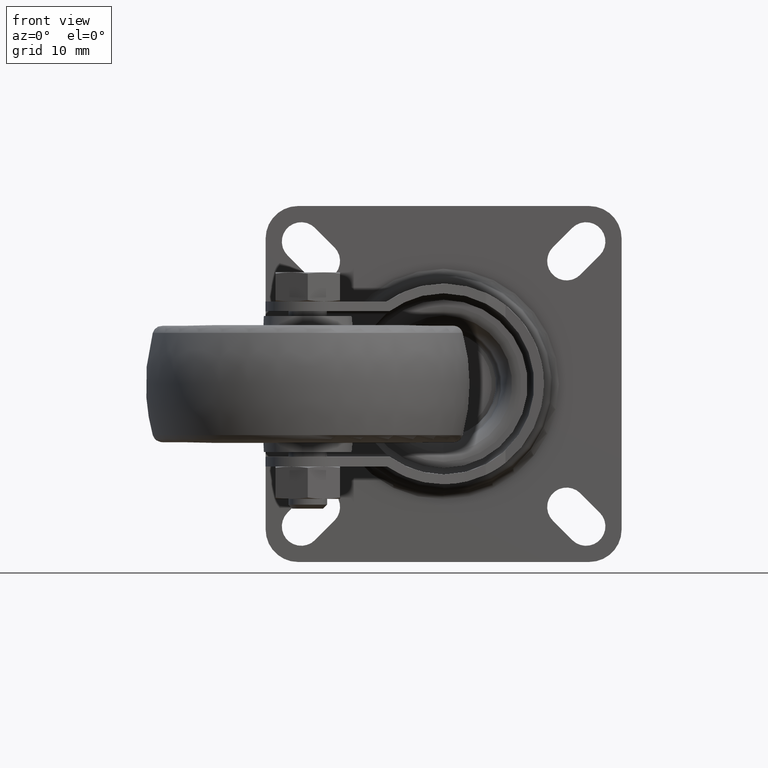
[diagram: clean part render]
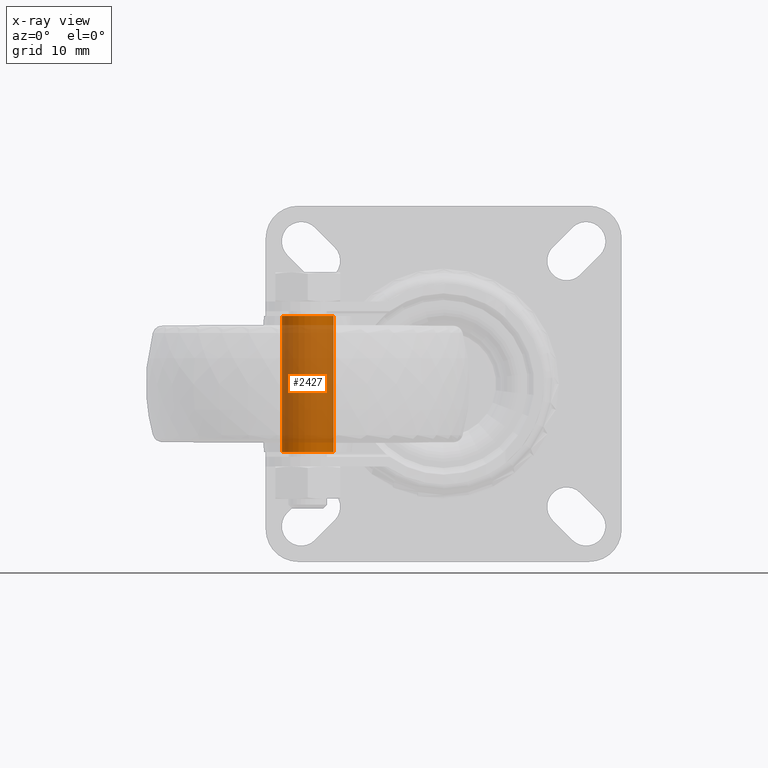
[diagram: x-ray — body ghosted, one internal face saturated and labeled with its STEP entity id]
A machine part, front view, then the same camera in x-ray: the body is ghosted and one INTERNAL B-rep face — a face not visible from any outside direction — is saturated and labeled: STEP entity #2427.
In plain terms, the highlighted cylindrical surface (bore or boss wall) has radius 4 mm, axis along (0, 0, -1).
Its self-contained STEP definition (entity closure, byte-faithful):
#340=CYLINDRICAL_SURFACE('',#2604,4.);
#381=FACE_BOUND('',#646,.T.);
#475=FACE_OUTER_BOUND('',#645,.T.);
#645=EDGE_LOOP('',(#1584));
#646=EDGE_LOOP('',(#1585));
#907=CIRCLE('',#2603,4.);
#908=CIRCLE('',#2605,4.);
#1054=VERTEX_POINT('',#3662);
#1055=VERTEX_POINT('',#3665);
#1277=EDGE_CURVE('',#1054,#1054,#907,.T.);
#1278=EDGE_CURVE('',#1055,#1055,#908,.T.);
#1584=ORIENTED_EDGE('',*,*,#1278,.T.);
#1585=ORIENTED_EDGE('',*,*,#1277,.F.);
#2427=ADVANCED_FACE('',(#475,#381),#340,.F.);
#2603=AXIS2_PLACEMENT_3D('',#3663,#2928,#2929);
#2604=AXIS2_PLACEMENT_3D('',#3664,#2930,#2931);
#2605=AXIS2_PLACEMENT_3D('',#3666,#2932,#2933);
#2928=DIRECTION('center_axis',(0.,0.,1.));
#2929=DIRECTION('ref_axis',(1.,0.,0.));
#2930=DIRECTION('center_axis',(0.,0.,-1.));
#2931=DIRECTION('ref_axis',(1.,0.,0.));
#2932=DIRECTION('center_axis',(0.,0.,1.));
#2933=DIRECTION('ref_axis',(1.,0.,0.));
#3662=CARTESIAN_POINT('',(4.,0.,-10.5));
#3663=CARTESIAN_POINT('Origin',(0.,0.,-10.5));
#3664=CARTESIAN_POINT('Origin',(0.,0.,10.5));
#3665=CARTESIAN_POINT('',(4.,0.,10.5));
#3666=CARTESIAN_POINT('Origin',(0.,0.,10.5));